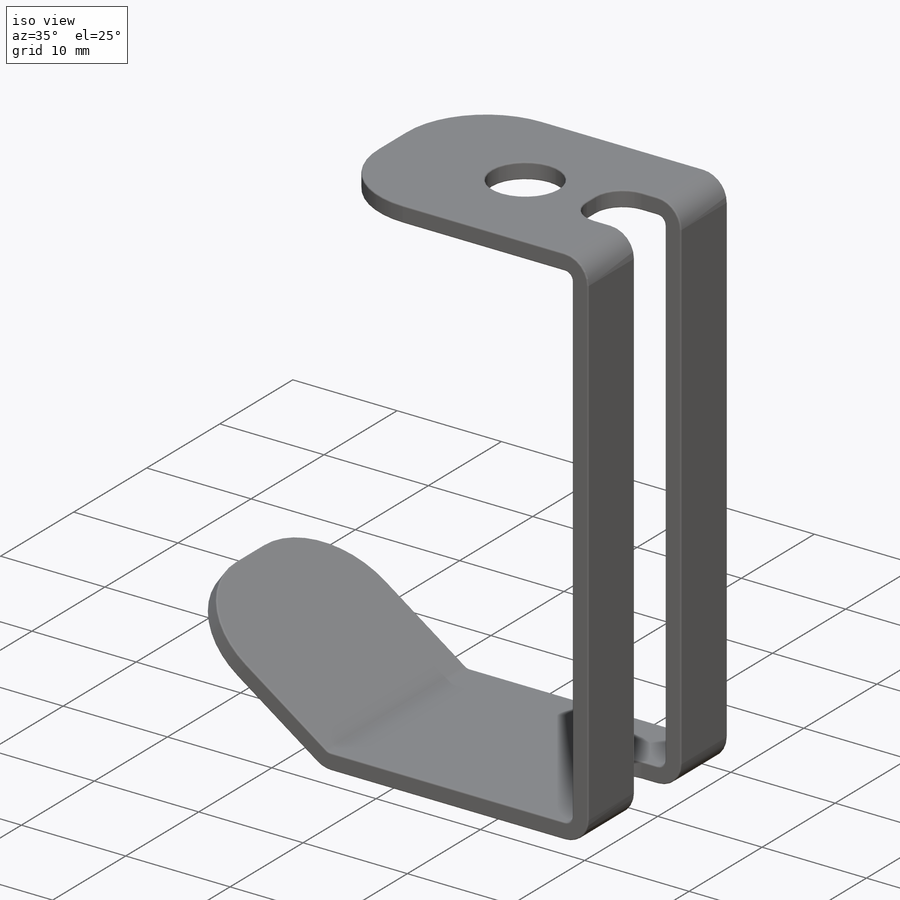
[diagram: iso view]
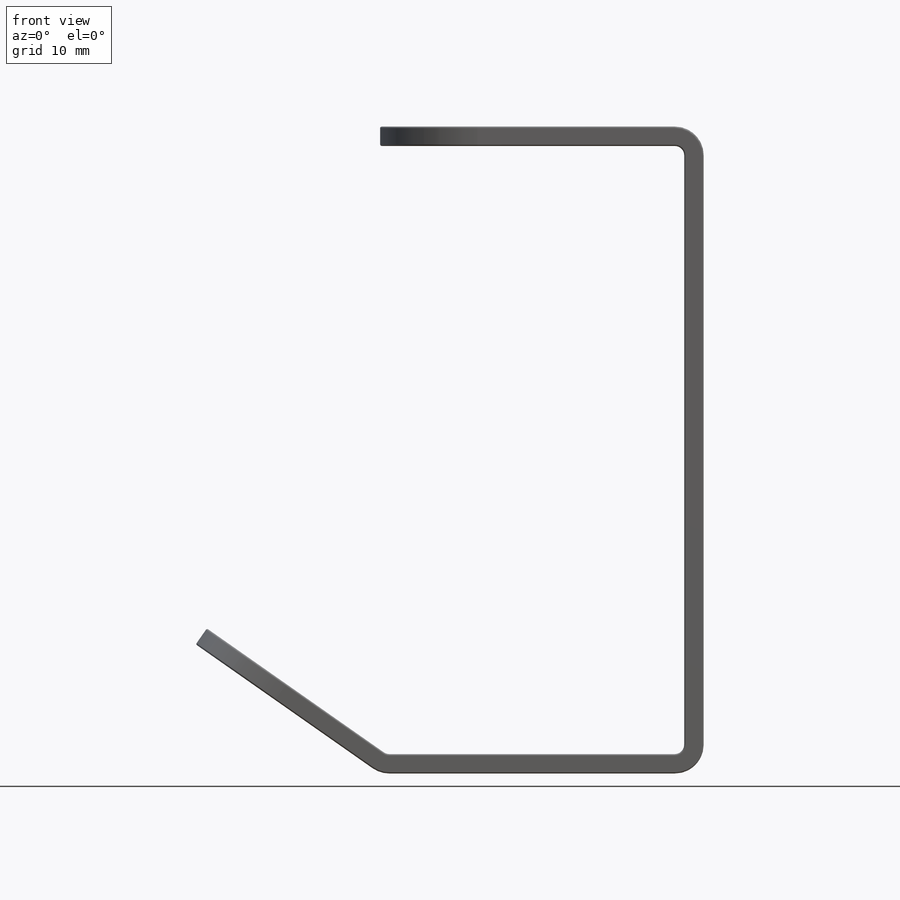
[diagram: front view]
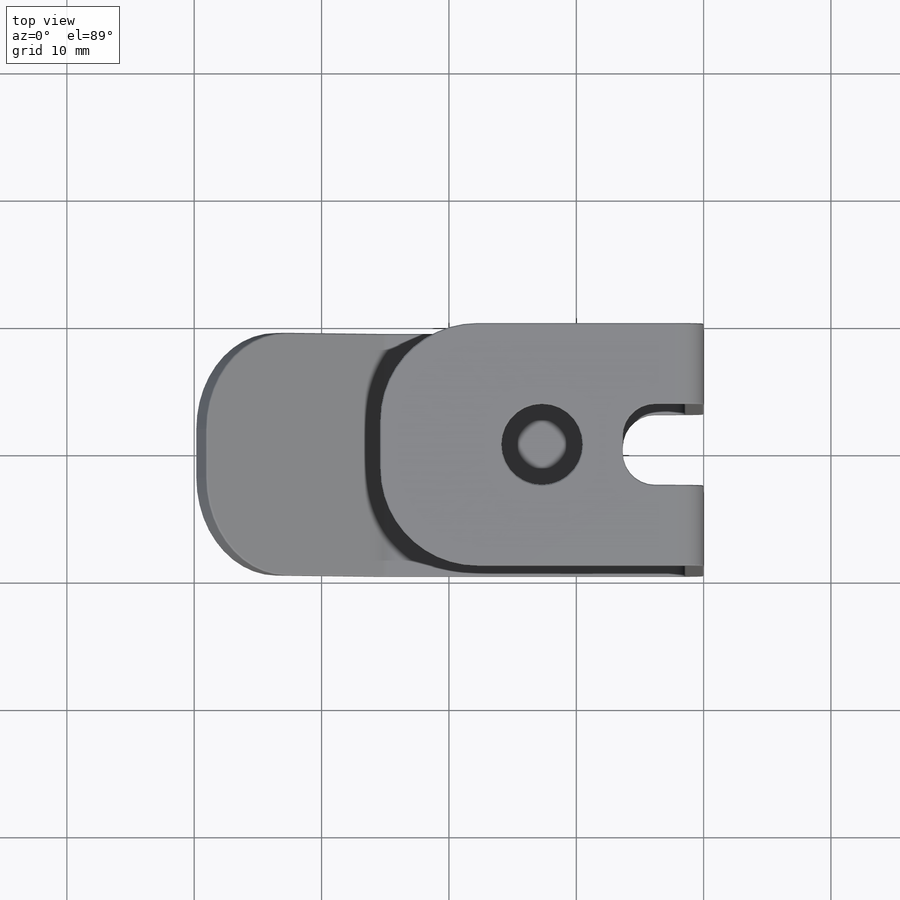
[diagram: top view]
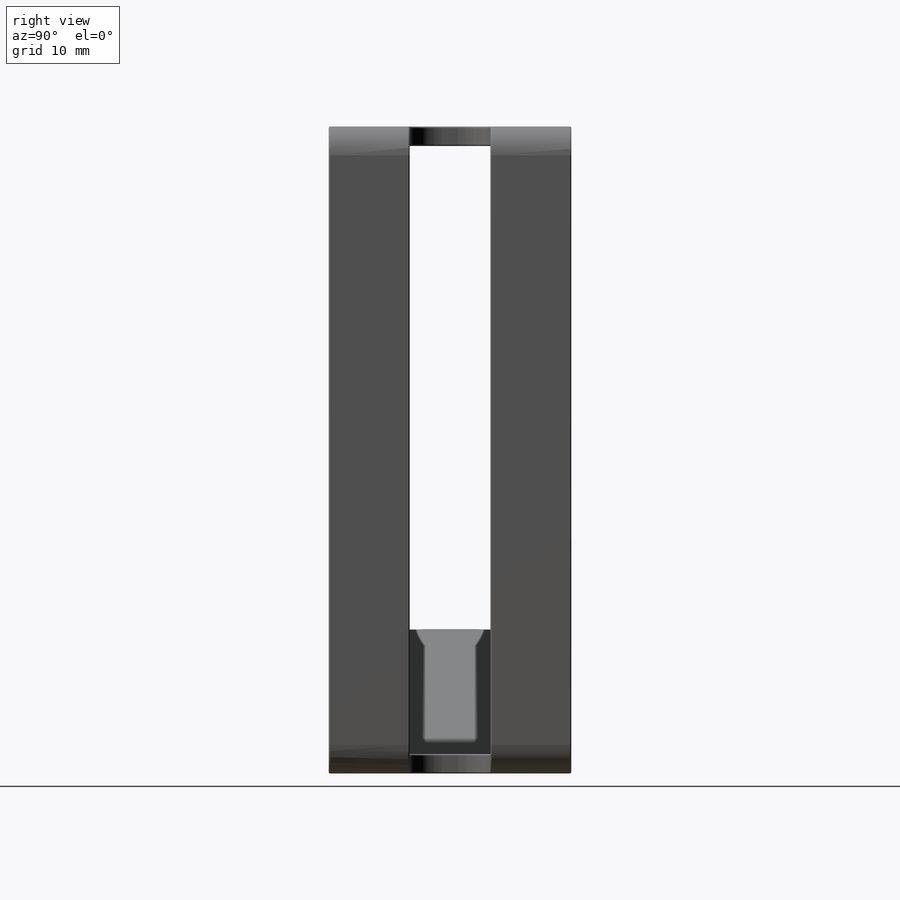
[diagram: right view]
SOLIDWORKS PART (.sldprt)
format: sldprt  version: not decoded by parser v0  size: 636,416 bytes
history: native  units: mm
features: sketch x13, extrude x6, fillet x5, sheet_metal_op x3, material x1, plane x1, cut_extrude x1, hole x1 + 3 further entries (+11 scaffold rows collapsed; 1 parser-record rows omitted)
feature tree (46):
  scaffold x11  (default folders/planes/origin — collapsed)
  material  "AISI 1020 Steel, Cold Rolled"
  plane  "Plane1"  Offset=9.525mm
  sketch  "Sketch5"  dims[D1=~18.569485mm D2=19.05mm D3=~19.443615mm D4=~0.275612mm D5=1.524mm]
  extrude  "Boss-Extrude1"  Depth=12.7mm
  sketch  "Sketch6"  dims[D1=6.35mm D2=50.8mm]
  extrude  "Boss-Extrude2"  Depth=6.35mm
  sketch  "Sketch7"  dims[D1=6.35mm D2=49.276mm]
  cut_extrude  "Cut-Extrude1"  Depth=4.826mm
  sketch  "Sketch8"  dims[D1=12.7mm D2=1.524mm]
  extrude  "Boss-Extrude3"  Depth=17.198239mm
  sketch  "Sketch9"  dims[D1=6.35mm D2=1.524mm]
  extrude  "Boss-Extrude4"  Depth=4.826mm
  sketch  "Sketch10"  dims[D1=12.7mm D2=1.524mm]
  extrude  "Boss-Extrude5"  Depth=19.05mm
  sketch  "Sketch11"  dims[D1=~0.87413mm D2=~14.481588mm D3=~14.962103mm D4=~38.357588mm D5=~39.881588mm D6=1.524mm D7=~10.140117mm D8=~11.388505mm D9=49.276mm D10=50.8mm]
  extrude  "Boss-Extrude6"  Depth=6.35mm
  fillet  "Fillet1"  Radius=0.7366mm
  fillet  "Fillet2"  Radius=2.2606mm
  fillet  "Fillet3"  Radius=2.54mm
  fillet  "Fillet4"  Radius=7.62mm
  hole  "Hole1"  Diameter=6.35mm Depth=1.524mm
  sketch  "Sketch13"
  sketch  "Sketch12"  dims[Diameter=6.35mm Depth=1.524mm]
  sheet_metal_op  "Sheet-Metal3"
  sketch  "Sharp-Sketch3"
  sheet_metal_op  "RoundBend2"
  sheet_metal_op  "RoundBend3"
  sketch  "Flat-Sketch3"  dims[D1=0.0mm]
  fillet  "Fillet6"  Radius=0.127mm
  "Flat-Pattern3"
  sketch  "Bend-Lines3"
  sketch  "Bounding-Box3"
  "Flatten-<RoundBend2>1"
  "Flatten-<RoundBend3>1"
  parser-record x1  (decoder bookkeeping rows leaked as tree rows — omitted from the tree; the rows remain in map.json)
decode coverage: 22 of 29 modeling features carry decoded parameters; 3 rows unclassified (native names shown)
note: ~ marks probable driven/reference dimensions
note: suppression state not decoded; provenance and decode notes live in map.json
